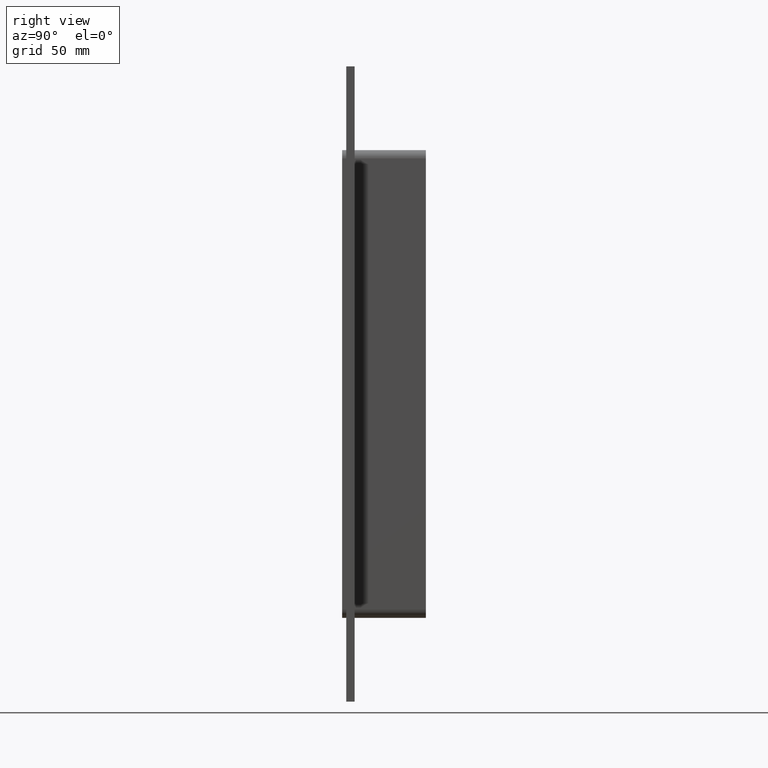
[diagram: clean part render]
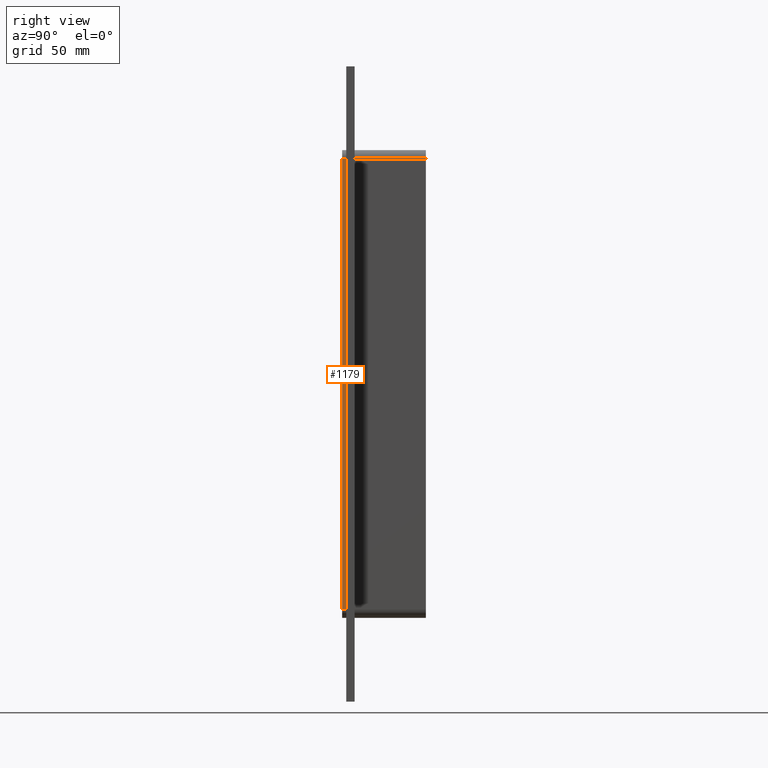
[diagram: same view with one face highlighted and labeled with its STEP entity id]
A machine part, right view. The second image highlights one B-rep face of the part: STEP entity #1179.
In plain terms, the highlighted planar face has unit normal (1, 0, 0).
Its self-contained STEP definition (entity closure, byte-faithful):
#958=CARTESIAN_POINT('',(66.25,0.0,161.5));
#959=VERTEX_POINT('',#958);
#967=CARTESIAN_POINT('',(66.25,0.0,-161.5));
#968=VERTEX_POINT('',#967);
#969=CARTESIAN_POINT('',(66.25,0.0,-161.5));
#970=DIRECTION('',(0.0,0.0,1.0));
#971=VECTOR('',#970,323.0);
#972=LINE('',#969,#971);
#973=EDGE_CURVE('',#968,#959,#972,.T.);
#1106=CARTESIAN_POINT('',(66.25,-3.0,161.5));
#1107=VERTEX_POINT('',#1106);
#1115=CARTESIAN_POINT('',(66.25,-3.0,161.5));
#1116=DIRECTION('',(0.0,1.0,0.0));
#1117=VECTOR('',#1116,3.0);
#1118=LINE('',#1115,#1117);
#1119=EDGE_CURVE('',#1107,#959,#1118,.T.);
#1156=CARTESIAN_POINT('',(66.25,0.0,167.5));
#1157=DIRECTION('',(1.0,0.0,0.0));
#1158=DIRECTION('',(0.0,0.0,-1.0));
#1159=AXIS2_PLACEMENT_3D('',#1156,#1157,#1158);
#1160=PLANE('',#1159);
#1161=ORIENTED_EDGE('',*,*,#973,.T.);
#1162=ORIENTED_EDGE('',*,*,#1119,.F.);
#1163=CARTESIAN_POINT('',(66.25,-3.0,-161.5));
#1164=VERTEX_POINT('',#1163);
#1165=CARTESIAN_POINT('',(66.25,-3.0,-161.5));
#1166=DIRECTION('',(0.0,0.0,1.0));
#1167=VECTOR('',#1166,323.0);
#1168=LINE('',#1165,#1167);
#1169=EDGE_CURVE('',#1164,#1107,#1168,.T.);
#1170=ORIENTED_EDGE('',*,*,#1169,.F.);
#1171=CARTESIAN_POINT('',(66.25,0.0,-161.5));
#1172=DIRECTION('',(0.0,-1.0,0.0));
#1173=VECTOR('',#1172,3.0);
#1174=LINE('',#1171,#1173);
#1175=EDGE_CURVE('',#968,#1164,#1174,.T.);
#1176=ORIENTED_EDGE('',*,*,#1175,.F.);
#1177=EDGE_LOOP('',(#1161,#1162,#1170,#1176));
#1178=FACE_OUTER_BOUND('',#1177,.T.);
#1179=ADVANCED_FACE('',(#1178),#1160,.T.);